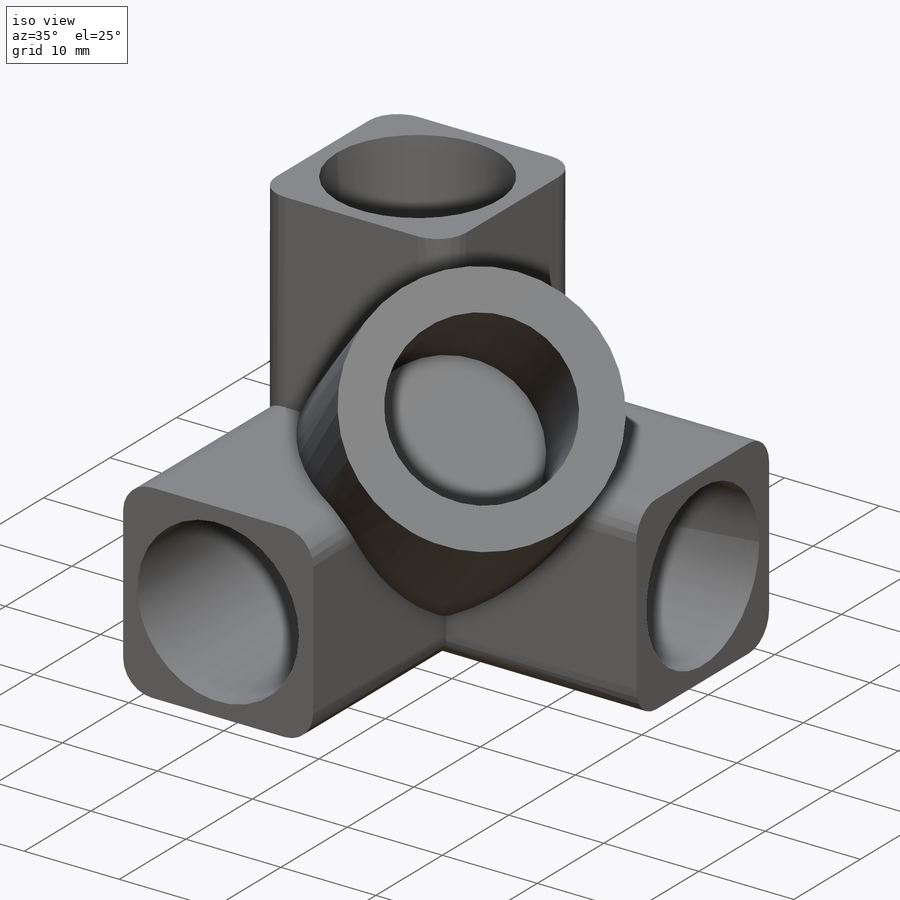
[diagram: iso view]
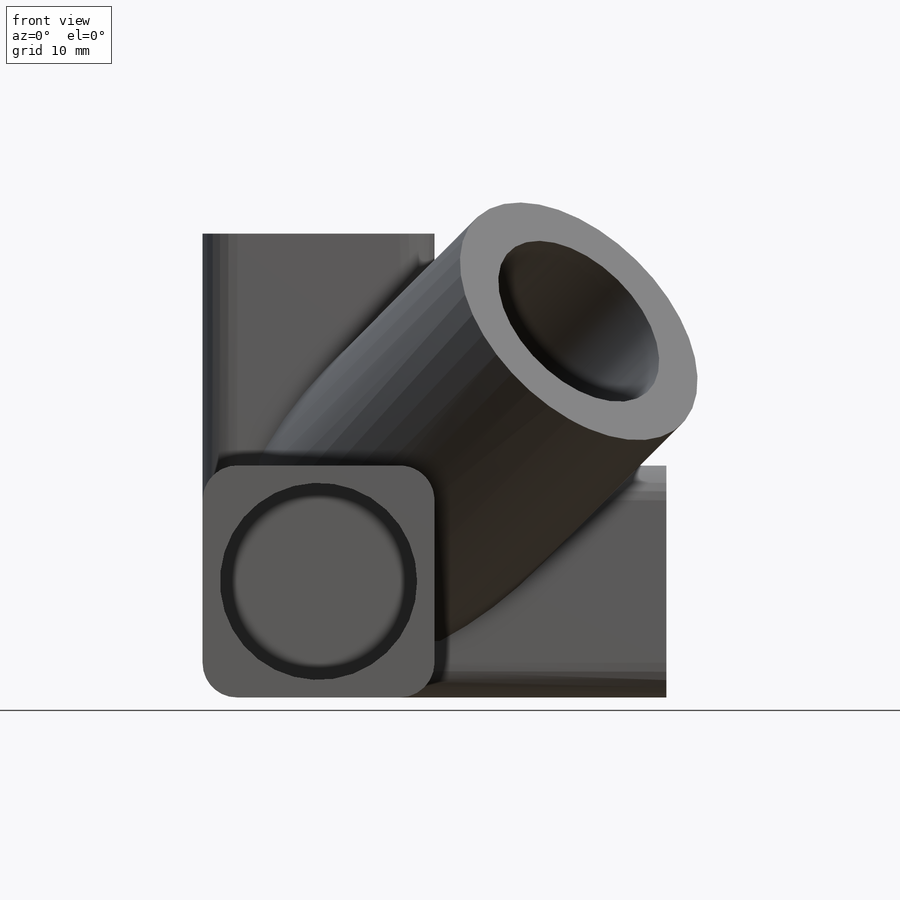
[diagram: front view]
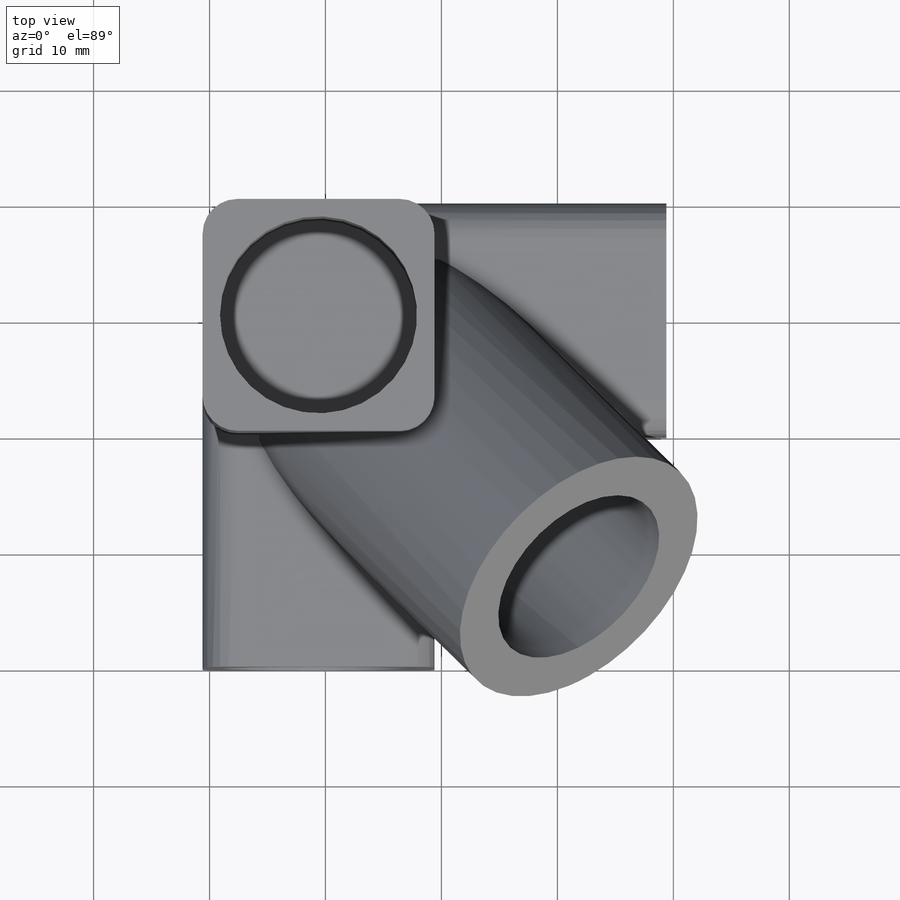
[diagram: top view]
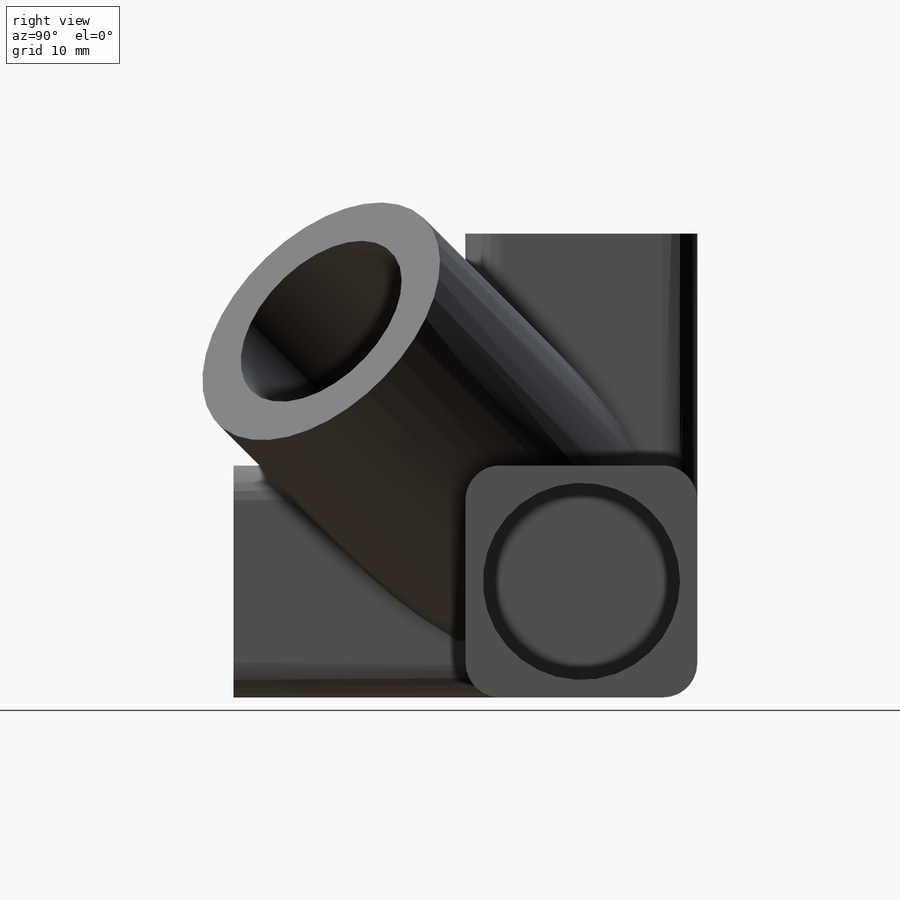
[diagram: right view]
SOLIDWORKS PART (.sldprt)
format: sldprt  version: not decoded by parser v0  size: 288,768 bytes
history: native  units: mm
features: sketch x7, plane x4, cut_extrude x4, extrude x3, material x1, fillet x1 (+9 scaffold rows collapsed)
feature tree (29):
  scaffold x9  (default folders/planes/origin — collapsed)
  material  "材質 <未指定>"
  plane  "前基準面"
  plane  "上基準面"
  plane  "右基準面"
  sketch  "草圖5"  dims[D1=40.0mm D2=20.0mm D3=20.0mm D4=40.0mm]
  extrude  "填料-伸長5"  Depth=20mm
  sketch  "草圖6"  dims[D1=20.0mm D2=20.0mm]
  extrude  "填料-伸長6"  Depth=20mm
  plane  "平面2"
  sketch  "草圖7"  dims[c1.D1=25.1mm c1.D2=~28.284271mm c2.D1=~28.284271mm]
  extrude  "填料-伸長7"  Depth=20mm
  sketch  "草圖9"  dims[D1=17.0mm]
  cut_extrude  "除料-伸長1"  Depth=20mm
  sketch  "草圖10"  dims[D1=17.0mm D2=~28.284271mm]
  cut_extrude  "除料-伸長2"  Depth=20mm
  sketch  "草圖11"  dims[D1=17.0mm D2=~28.284271mm]
  cut_extrude  "除料-伸長3"  Depth=20mm
  fillet  "圓角1"  Radius=3mm
  sketch  "草圖14"  dims[D1=17.0mm]
  cut_extrude  "除料-伸長5"  Depth=20mm
decode coverage: 15 of 15 modeling features carry decoded parameters
note: ~ marks probable driven/reference dimensions
note: suppression state not decoded; provenance and decode notes live in map.json
